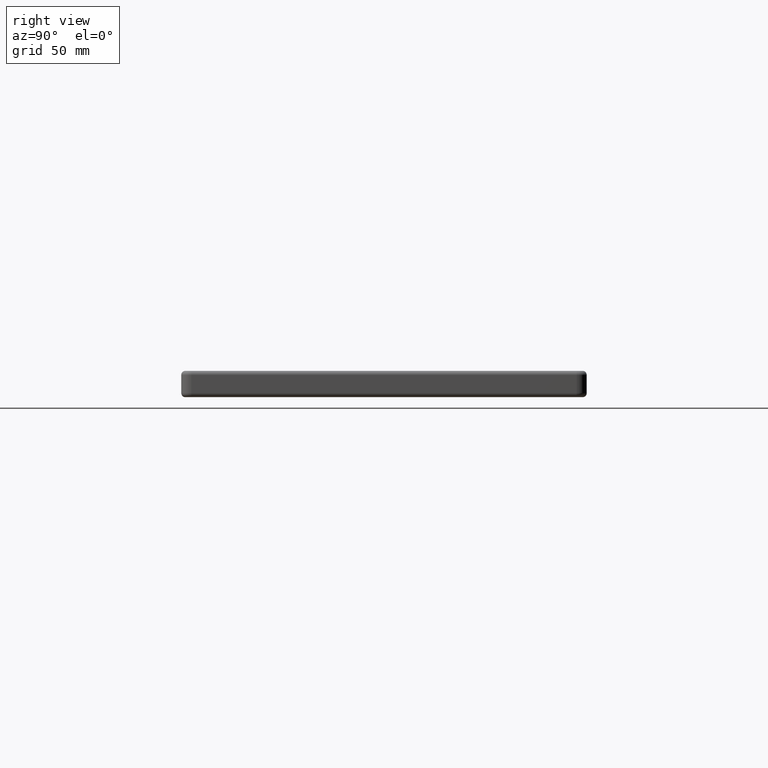
[diagram: clean part render]
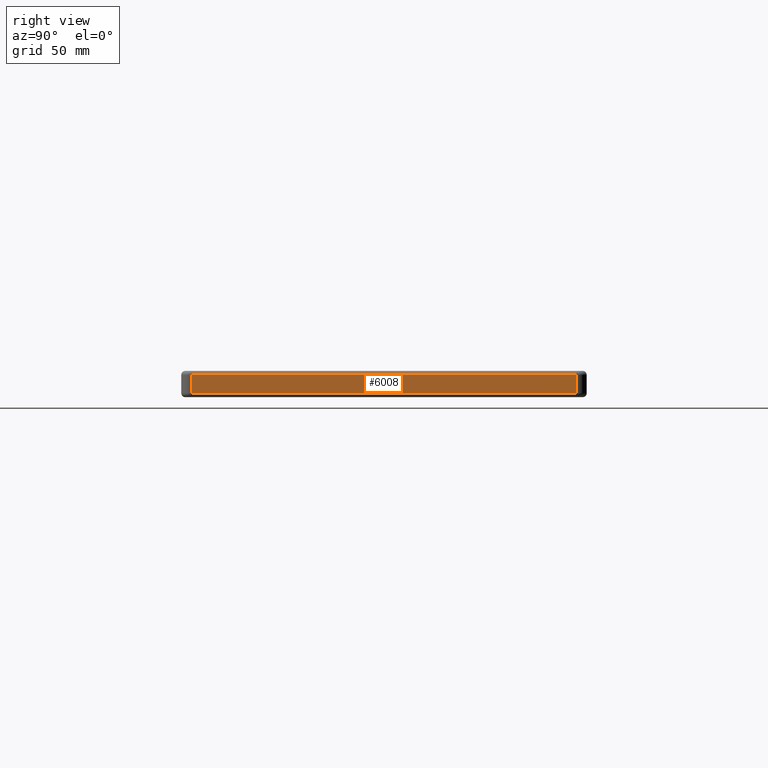
[diagram: same view with one face highlighted and labeled with its STEP entity id]
A machine part, right view. The second image highlights one B-rep face of the part: STEP entity #6008.
In plain terms, the highlighted planar face has unit normal (1, 0, -0).
Its self-contained STEP definition (entity closure, byte-faithful):
#15 = DIRECTION ( 'NONE',  ( 1.000000000000000000, 2.921639538487251300E-016, -0.0000000000000000000 ) ) ;
#70 = CARTESIAN_POINT ( 'NONE',  ( 149.9999999999999700, 95.00000000000015600, -13.00000000000000000 ) ) ;
#152 = ORIENTED_EDGE ( 'NONE', *, *, #6425, .T. ) ;
#246 = VERTEX_POINT ( 'NONE', #2060 ) ;
#390 = DIRECTION ( 'NONE',  ( 2.921639538487251300E-016, -1.000000000000000000, -0.0000000000000000000 ) ) ;
#482 = VERTEX_POINT ( 'NONE', #5624 ) ;
#618 = CARTESIAN_POINT ( 'NONE',  ( 150.0000000000000900, -95.00000000000007100, -13.00000000000000000 ) ) ;
#698 = EDGE_CURVE ( 'NONE', #3648, #1930, #1954, .T. ) ;
#720 = VECTOR ( 'NONE', #4854, 1000.000000000000000 ) ;
#1104 = CARTESIAN_POINT ( 'NONE',  ( 150.0000000000000300, -95.00000000000007100, -13.00000000000000000 ) ) ;
#1465 = CARTESIAN_POINT ( 'NONE',  ( 149.9999999999999700, 95.00000000000015600, -2.000000000000003600 ) ) ;
#1930 = VERTEX_POINT ( 'NONE', #1465 ) ;
#1954 = LINE ( 'NONE', #70, #6431 ) ;
#2060 = CARTESIAN_POINT ( 'NONE',  ( 150.0000000000000900, -95.00000000000007100, -2.000000000000001800 ) ) ;
#2609 = CARTESIAN_POINT ( 'NONE',  ( 149.9999999999999700, 95.00000000000015600, -11.00000000000000000 ) ) ;
#2618 = VECTOR ( 'NONE', #6804, 1000.000000000000000 ) ;
#2630 = CARTESIAN_POINT ( 'NONE',  ( 150.0000000000000300, -95.00000000000008500, -2.000000000000000000 ) ) ;
#2644 = FACE_OUTER_BOUND ( 'NONE', #6556, .T. ) ;
#2672 = EDGE_CURVE ( 'NONE', #482, #246, #5402, .T. ) ;
#2905 = AXIS2_PLACEMENT_3D ( 'NONE', #1104, #15, #6789 ) ;
#3108 = ORIENTED_EDGE ( 'NONE', *, *, #2672, .F. ) ;
#3382 = DIRECTION ( 'NONE',  ( 0.0000000000000000000, 0.0000000000000000000, 1.000000000000000000 ) ) ;
#3648 = VERTEX_POINT ( 'NONE', #2609 ) ;
#4428 = LINE ( 'NONE', #5395, #720 ) ;
#4507 = PLANE ( 'NONE',  #2905 ) ;
#4854 = DIRECTION ( 'NONE',  ( -2.921639538487251300E-016, 1.000000000000000000, 0.0000000000000000000 ) ) ;
#5395 = CARTESIAN_POINT ( 'NONE',  ( 150.0000000000000300, -95.00000000000007100, -11.00000000000000000 ) ) ;
#5402 = LINE ( 'NONE', #618, #2618 ) ;
#5454 = ORIENTED_EDGE ( 'NONE', *, *, #6353, .T. ) ;
#5624 = CARTESIAN_POINT ( 'NONE',  ( 150.0000000000000900, -95.00000000000007100, -11.00000000000000000 ) ) ;
#5879 = LINE ( 'NONE', #2630, #6231 ) ;
#6008 = ADVANCED_FACE ( 'NONE', ( #2644 ), #4507, .T. ) ;
#6098 = ORIENTED_EDGE ( 'NONE', *, *, #698, .T. ) ;
#6231 = VECTOR ( 'NONE', #390, 1000.000000000000000 ) ;
#6353 = EDGE_CURVE ( 'NONE', #1930, #246, #5879, .T. ) ;
#6425 = EDGE_CURVE ( 'NONE', #482, #3648, #4428, .T. ) ;
#6431 = VECTOR ( 'NONE', #3382, 1000.000000000000000 ) ;
#6556 = EDGE_LOOP ( 'NONE', ( #3108, #152, #6098, #5454 ) ) ;
#6789 = DIRECTION ( 'NONE',  ( -2.921639538487251300E-016, 1.000000000000000000, 0.0000000000000000000 ) ) ;
#6804 = DIRECTION ( 'NONE',  ( 0.0000000000000000000, 0.0000000000000000000, 1.000000000000000000 ) ) ;